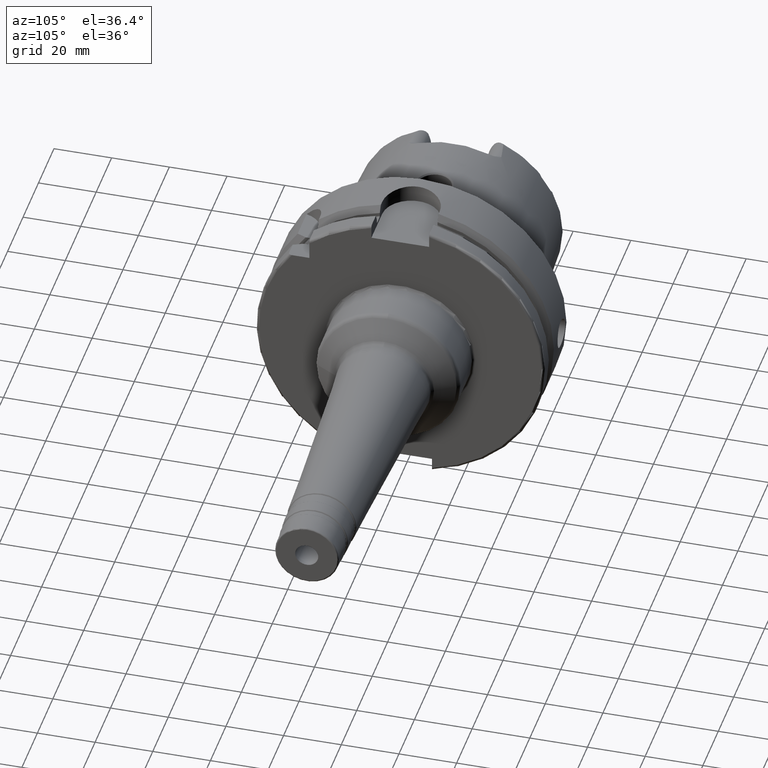
[diagram: clean part render]
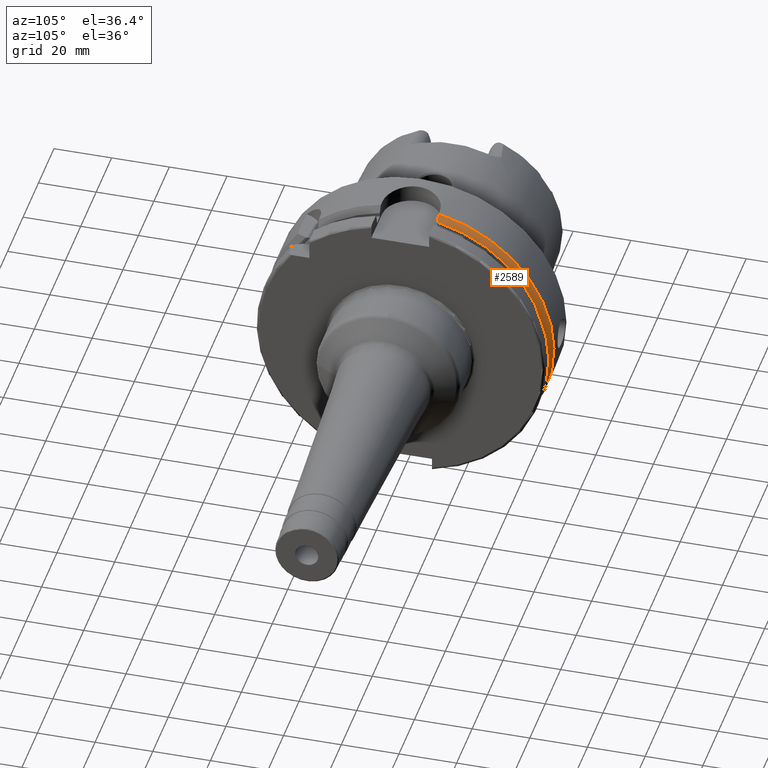
[diagram: same view with one face highlighted and labeled with its STEP entity id]
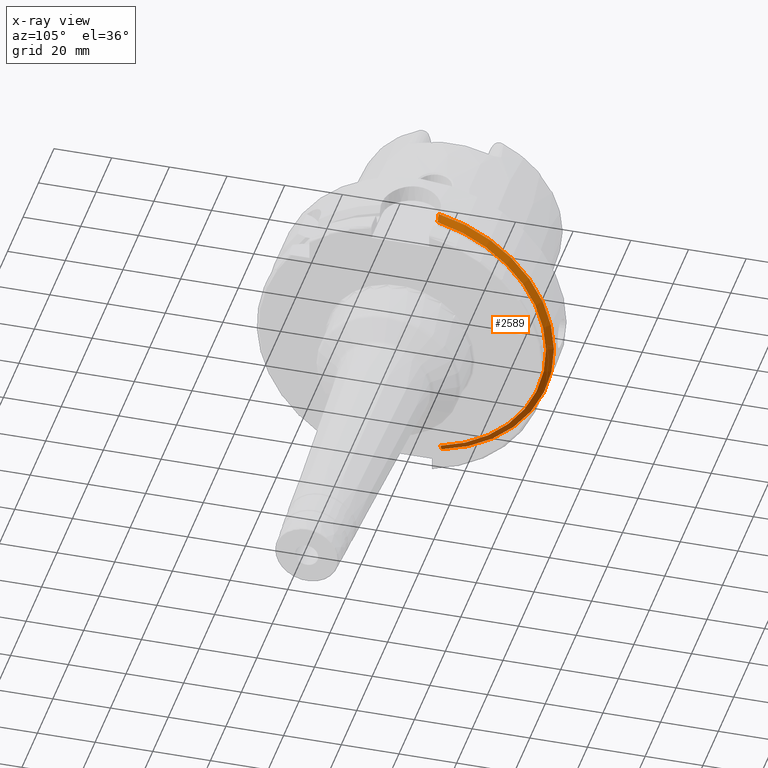
[diagram: x-ray of the same camera — body ghosted, the highlighted face saturated]
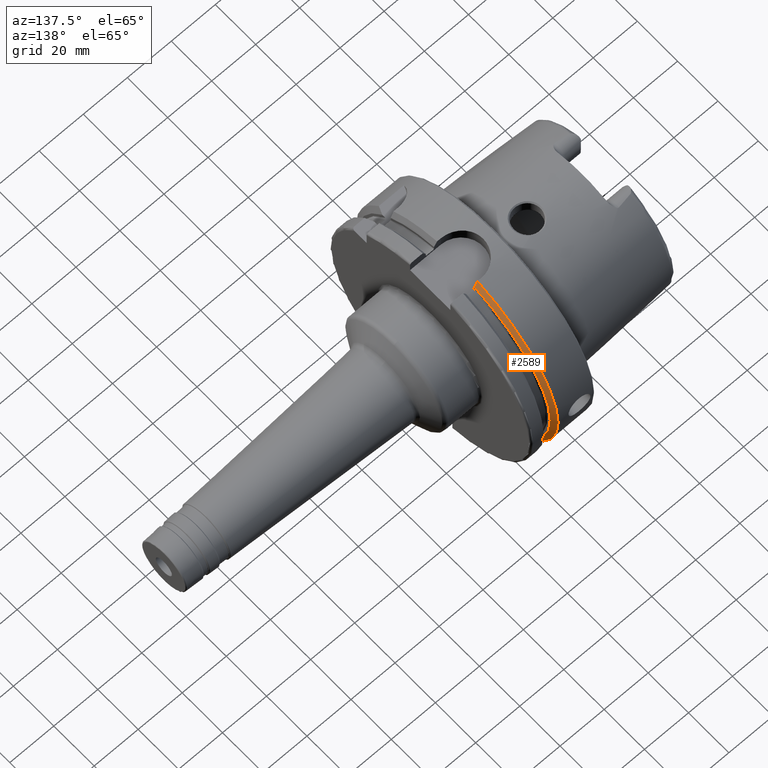
[diagram: same view with one face highlighted and labeled with its STEP entity id]
A machine part, auxiliary view. The second image highlights one B-rep face of the part: STEP entity #2589.
The next image is the same camera in x-ray: the body ghosted, the highlighted face saturated — about 0% of this face is hidden behind the body in this view.
A second angle (auxiliary view) of the same face is appended — the face is thin or edge-on in the first view.
In plain terms, the highlighted conical surface has half-angle 60 deg.
Its self-contained STEP definition (entity closure, byte-faithful):
#23=(
BOUNDED_CURVE()
B_SPLINE_CURVE(2,(#5189,#5190,#5191),.UNSPECIFIED.,.F.,.F.)
B_SPLINE_CURVE_WITH_KNOTS((3,3),(0.,0.282923490805558),.UNSPECIFIED.)
CURVE()
GEOMETRIC_REPRESENTATION_ITEM()
RATIONAL_B_SPLINE_CURVE((1.,1.00031934109636,1.))
REPRESENTATION_ITEM('')
);
#28=(
BOUNDED_CURVE()
B_SPLINE_CURVE(2,(#5354,#5355,#5356),.UNSPECIFIED.,.F.,.F.)
B_SPLINE_CURVE_WITH_KNOTS((3,3),(0.,0.281931851964124),.UNSPECIFIED.)
CURVE()
GEOMETRIC_REPRESENTATION_ITEM()
RATIONAL_B_SPLINE_CURVE((1.,1.00031639798907,1.))
REPRESENTATION_ITEM('')
);
#421=CONICAL_SURFACE('',#2912,48.7987976320958,1.0471975511966);
#512=FACE_OUTER_BOUND('',#653,.T.);
#653=EDGE_LOOP('',(#2193,#2194,#2195,#2196));
#845=CIRCLE('',#2861,50.);
#870=CIRCLE('',#2911,47.5975952641917);
#1130=VERTEX_POINT('',#5068);
#1131=VERTEX_POINT('',#5070);
#1150=VERTEX_POINT('',#5188);
#1175=VERTEX_POINT('',#5350);
#1474=EDGE_CURVE('',#1131,#1130,#845,.T.);
#1505=EDGE_CURVE('',#1150,#1131,#23,.T.);
#1545=EDGE_CURVE('',#1150,#1175,#870,.T.);
#1547=EDGE_CURVE('',#1130,#1175,#28,.T.);
#2193=ORIENTED_EDGE('',*,*,#1505,.T.);
#2194=ORIENTED_EDGE('',*,*,#1474,.T.);
#2195=ORIENTED_EDGE('',*,*,#1547,.T.);
#2196=ORIENTED_EDGE('',*,*,#1545,.F.);
#2589=ADVANCED_FACE('',(#512),#421,.T.);
#2861=AXIS2_PLACEMENT_3D('',#5071,#3495,#3496);
#2911=AXIS2_PLACEMENT_3D('',#5351,#3620,#3621);
#2912=AXIS2_PLACEMENT_3D('',#5353,#3623,#3624);
#3495=DIRECTION('center_axis',(1.,0.,0.));
#3496=DIRECTION('ref_axis',(0.,0.,-1.));
#3620=DIRECTION('center_axis',(1.,0.,0.));
#3621=DIRECTION('ref_axis',(0.,0.,-1.));
#3623=DIRECTION('center_axis',(-1.,0.,0.));
#3624=DIRECTION('ref_axis',(0.,1.,0.));
#5068=CARTESIAN_POINT('',(16.7379709790786,10.,48.9897948556636));
#5070=CARTESIAN_POINT('',(16.7379709790786,11.,-48.7749935930288));
#5071=CARTESIAN_POINT('Origin',(16.7379709790786,0.,0.));
#5188=CARTESIAN_POINT('',(18.125,11.,-46.3090819919139));
#5189=CARTESIAN_POINT('Ctrl Pts',(18.125,11.,-46.3090819919139));
#5190=CARTESIAN_POINT('Ctrl Pts',(17.4494711035784,11.,-47.5116880808765));
#5191=CARTESIAN_POINT('Ctrl Pts',(16.7379709790786,11.,-48.7749935930288));
#5350=CARTESIAN_POINT('',(18.125,10.,46.5352670018536));
#5351=CARTESIAN_POINT('Origin',(18.125,0.,0.));
#5353=CARTESIAN_POINT('Origin',(17.4314854895393,0.,0.));
#5354=CARTESIAN_POINT('Ctrl Pts',(16.7379709790786,10.,48.9897948556636));
#5355=CARTESIAN_POINT('Ctrl Pts',(17.4493054275198,10.,47.7323213252028));
#5356=CARTESIAN_POINT('Ctrl Pts',(18.125,10.,46.5352670018536));